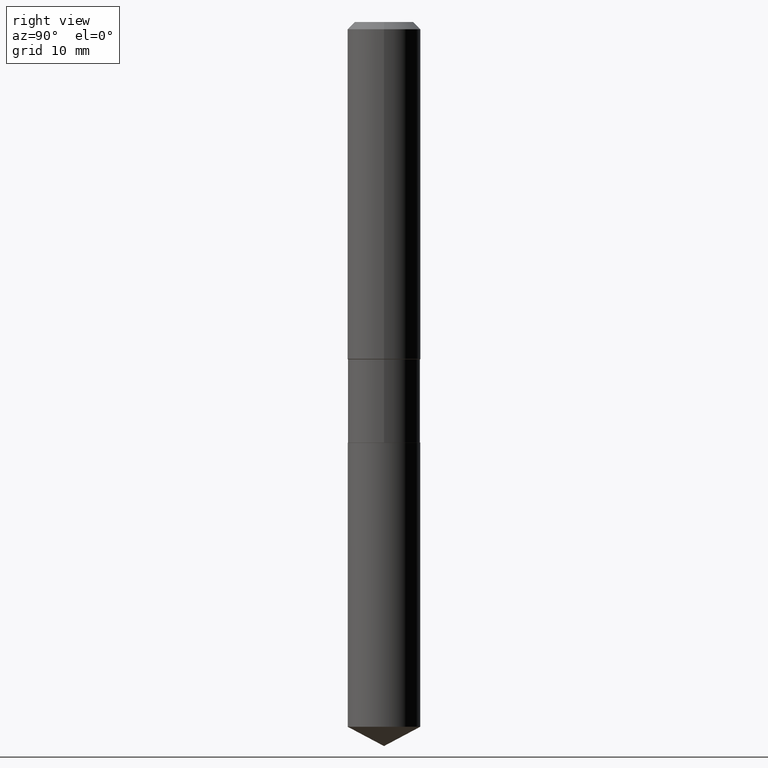
[diagram: clean part render]
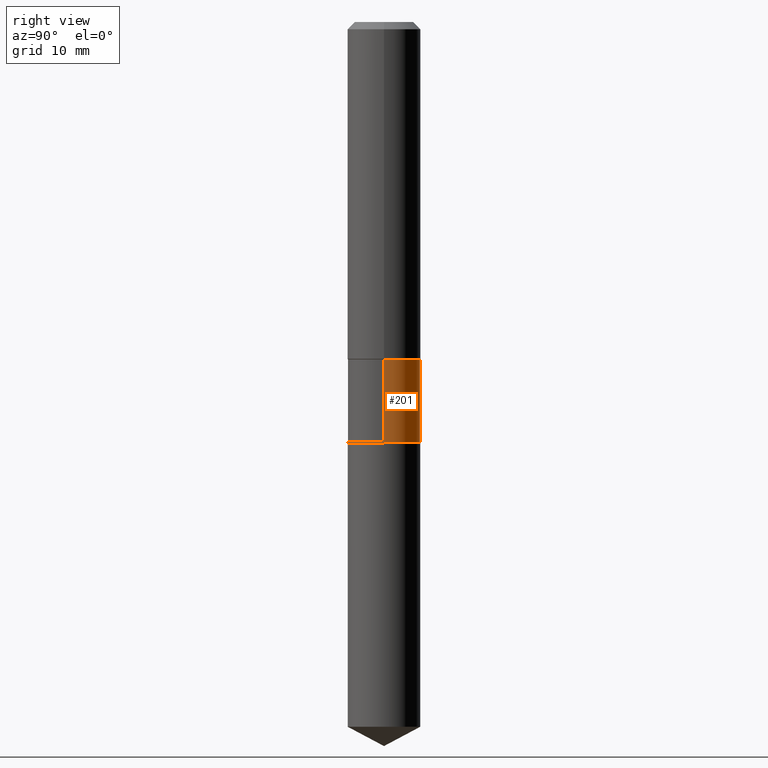
[diagram: same view with one face highlighted and labeled with its STEP entity id]
A machine part, right view. The second image highlights one B-rep face of the part: STEP entity #201.
In plain terms, the highlighted cylindrical surface (edge-blend (fillet) strip) has radius 3.9497 mm, axis along (-0, 0, 1).
Its self-contained STEP definition (entity closure, byte-faithful):
#17 = ORIENTED_EDGE ( 'NONE', *, *, #294, .T. ) ;
#63 = AXIS2_PLACEMENT_3D ( 'NONE', #251, #407, #73 ) ;
#68 = DIRECTION ( 'NONE',  ( -2.445468806185136877E-29, 3.491481338843145188E-15, 1.000000000000000000 ) ) ;
#73 = DIRECTION ( 'NONE',  ( 1.000000000000000000, -6.982962677686266711E-15, 0.000000000000000000 ) ) ;
#128 = CYLINDRICAL_SURFACE ( 'NONE', #182, 0.1554999999999999438 ) ;
#148 = EDGE_CURVE ( 'NONE', #260, #267, #401, .T. ) ;
#149 = DIRECTION ( 'NONE',  ( -2.445468806185136597E-29, 3.491481338843145583E-15, 1.000000000000000000 ) ) ;
#180 = EDGE_CURVE ( 'NONE', #233, #408, #266, .T. ) ;
#182 = AXIS2_PLACEMENT_3D ( 'NONE', #301, #310, #383 ) ;
#187 = EDGE_LOOP ( 'NONE', ( #208, #17, #460, #391 ) ) ;
#195 = LINE ( 'NONE', #416, #350 ) ;
#201 = ADVANCED_FACE ( 'NONE', ( #389 ), #128, .T. ) ;
#208 = ORIENTED_EDGE ( 'NONE', *, *, #180, .T. ) ;
#216 = DIRECTION ( 'NONE',  ( 1.000000000000000000, -6.982962677686269077E-15, 0.000000000000000000 ) ) ;
#218 = VECTOR ( 'NONE', #68, 39.37007874015748143 ) ;
#233 = VERTEX_POINT ( 'NONE', #305 ) ;
#251 = CARTESIAN_POINT ( 'NONE',  ( 4.417739398373449267E-29, -6.307361038620141674E-15, -1.806499999999999995 ) ) ;
#260 = VERTEX_POINT ( 'NONE', #265 ) ;
#265 = CARTESIAN_POINT ( 'NONE',  ( 0.1554999999999999438, -6.146054600765585278E-15, -1.449300000000000033 ) ) ;
#266 = CIRCLE ( 'NONE', #63, 0.1554999999999999993 ) ;
#267 = VERTEX_POINT ( 'NONE', #379 ) ;
#279 = CARTESIAN_POINT ( 'NONE',  ( -0.1554999999999999993, -4.578888517395800557E-15, -1.806499999999999995 ) ) ;
#294 = EDGE_CURVE ( 'NONE', #408, #267, #195, .T. ) ;
#301 = CARTESIAN_POINT ( 'NONE',  ( 0.000000000000000000, 0.000000000000000000, 0.000000000000000000 ) ) ;
#305 = CARTESIAN_POINT ( 'NONE',  ( 0.1554999999999999993, -7.393211735000357126E-15, -1.806499999999999995 ) ) ;
#310 = DIRECTION ( 'NONE',  ( -2.445468806185136597E-29, 3.491481338843145583E-15, 1.000000000000000000 ) ) ;
#348 = AXIS2_PLACEMENT_3D ( 'NONE', #480, #149, #216 ) ;
#350 = VECTOR ( 'NONE', #490, 39.37007874015748143 ) ;
#357 = LINE ( 'NONE', #478, #218 ) ;
#379 = CARTESIAN_POINT ( 'NONE',  ( -0.1554999999999999438, -4.578888517395801346E-15, -1.449300000000000033 ) ) ;
#383 = DIRECTION ( 'NONE',  ( 1.000000000000000000, -6.982962677686268288E-15, 4.876176775795936353E-29 ) ) ;
#389 = FACE_OUTER_BOUND ( 'NONE', #187, .T. ) ;
#391 = ORIENTED_EDGE ( 'NONE', *, *, #410, .F. ) ;
#401 = CIRCLE ( 'NONE', #348, 0.1554999999999999438 ) ;
#407 = DIRECTION ( 'NONE',  ( -2.445468806185136597E-29, 3.491481338843145583E-15, 1.000000000000000000 ) ) ;
#408 = VERTEX_POINT ( 'NONE', #279 ) ;
#410 = EDGE_CURVE ( 'NONE', #233, #260, #357, .T. ) ;
#416 = CARTESIAN_POINT ( 'NONE',  ( -0.1554999999999999438, 1.104893954106955390E-15, -7.648944065346376022E-30 ) ) ;
#460 = ORIENTED_EDGE ( 'NONE', *, *, #148, .F. ) ;
#478 = CARTESIAN_POINT ( 'NONE',  ( 0.1554999999999999438, -1.085850696380214268E-15, 7.582454886362678420E-30 ) ) ;
#480 = CARTESIAN_POINT ( 'NONE',  ( 3.544217940804118480E-29, -5.060203904385370615E-15, -1.449300000000000033 ) ) ;
#490 = DIRECTION ( 'NONE',  ( -2.445468806185136877E-29, 3.491481338843145188E-15, 1.000000000000000000 ) ) ;